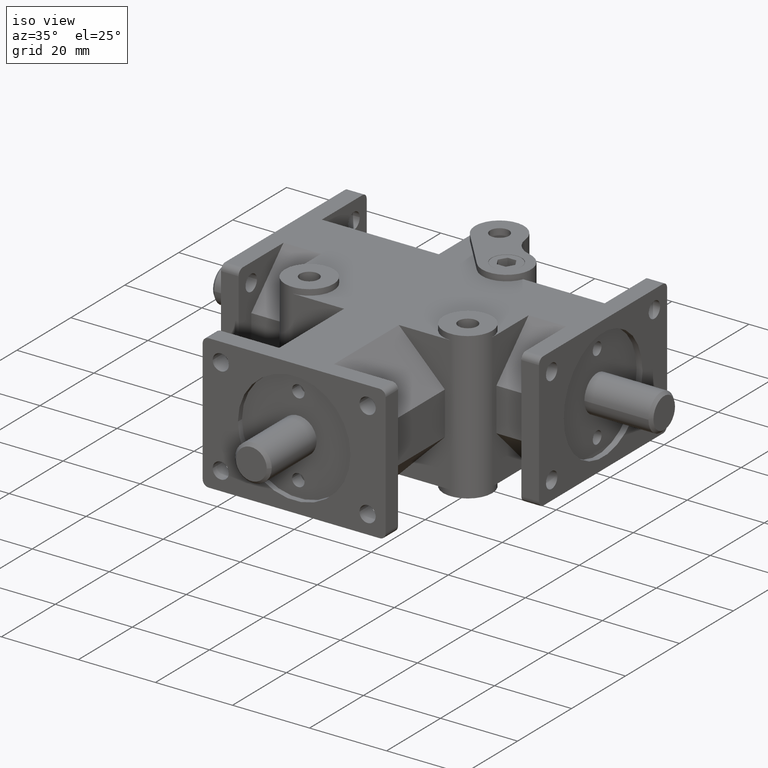
[diagram: clean part render]
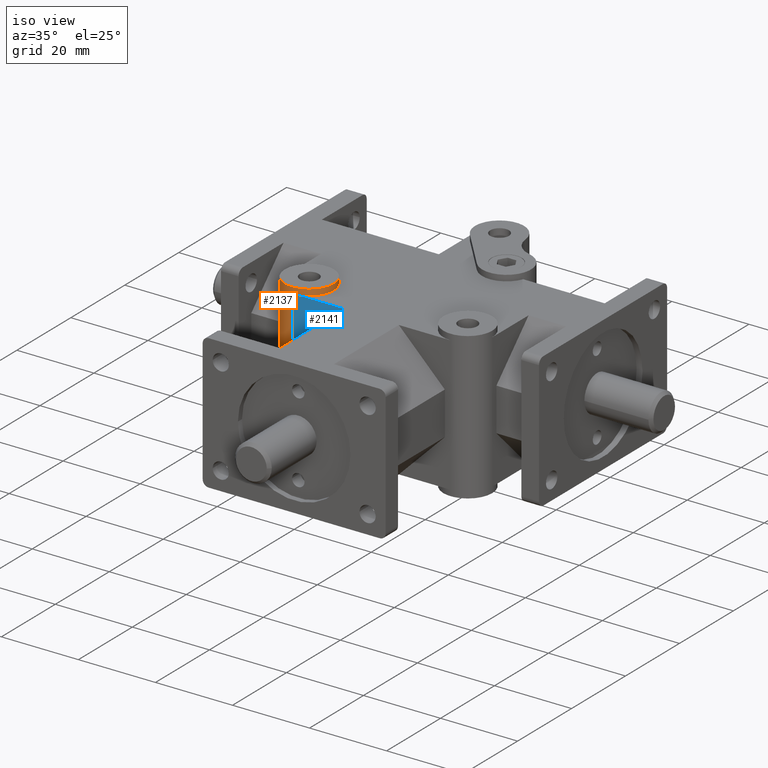
[diagram: same view with the hole feature highlighted: cylindrical wall and planar end face, labeled with their STEP entity ids]
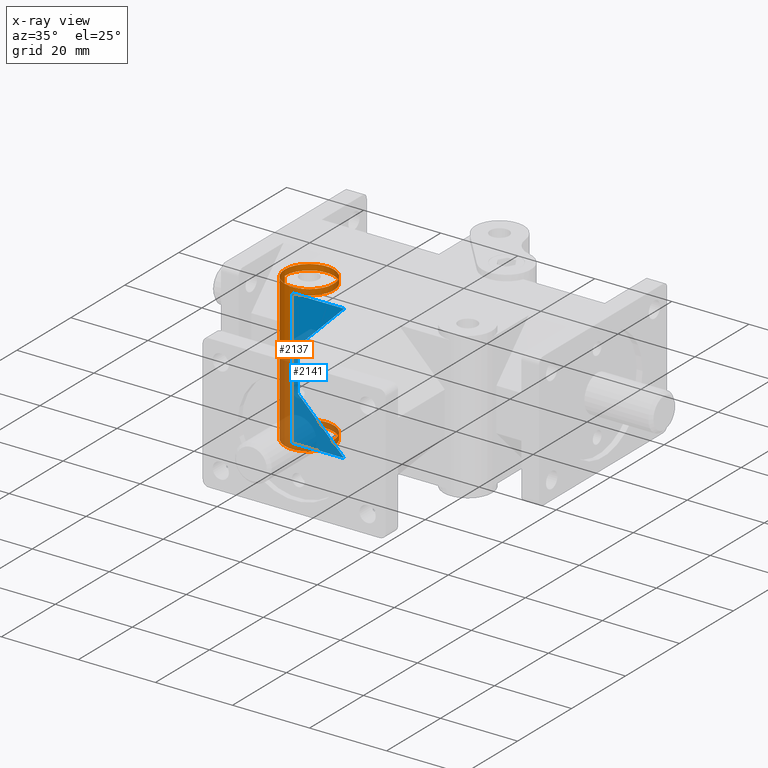
[diagram: x-ray of the same camera — body ghosted, the hole faces saturated]
A machine part, iso view. The highlighted faces form one hole feature of diameter 12.7 mm: the cylindrical wall (entity #2137, orange) and its adjacent planar end face (entity #2141, blue) — they share a circular edge in the B-rep.
The next image is the same camera in x-ray (body ghosted, the hole faces saturated) — the bore reads through the body.
Wall:
#199=FACE_OUTER_BOUND('',#347,.T.);
#347=EDGE_LOOP('',(#1769,#1770,#1771,#1772,#1773,#1774,#1775,#1776,#1777,
#1778));
#477=CIRCLE('',#2301,0.25);
#480=CIRCLE('',#2306,0.25);
#499=CIRCLE('',#2354,0.25);
#500=CIRCLE('',#2355,0.25);
#672=LINE('',#3555,#867);
#673=LINE('',#3559,#868);
#674=LINE('',#3561,#869);
#675=LINE('',#3563,#870);
#867=VECTOR('',#2880,1.);
#868=VECTOR('',#2885,0.25);
#869=VECTOR('',#2886,0.25);
#870=VECTOR('',#2889,1.);
#1019=VERTEX_POINT('',#3357);
#1020=VERTEX_POINT('',#3359);
#1030=VERTEX_POINT('',#3384);
#1031=VERTEX_POINT('',#3386);
#1084=VERTEX_POINT('',#3557);
#1085=VERTEX_POINT('',#3560);
#1244=EDGE_CURVE('',#1019,#1020,#477,.T.);
#1258=EDGE_CURVE('',#1030,#1031,#480,.T.);
#1346=EDGE_CURVE('',#1031,#1019,#672,.T.);
#1347=EDGE_CURVE('',#1084,#1084,#499,.T.);
#1348=EDGE_CURVE('',#1084,#1019,#673,.T.);
#1349=EDGE_CURVE('',#1031,#1085,#674,.T.);
#1350=EDGE_CURVE('',#1085,#1085,#500,.T.);
#1351=EDGE_CURVE('',#1030,#1020,#675,.T.);
#1769=ORIENTED_EDGE('',*,*,#1347,.T.);
#1770=ORIENTED_EDGE('',*,*,#1348,.T.);
#1771=ORIENTED_EDGE('',*,*,#1346,.F.);
#1772=ORIENTED_EDGE('',*,*,#1349,.T.);
#1773=ORIENTED_EDGE('',*,*,#1350,.T.);
#1774=ORIENTED_EDGE('',*,*,#1349,.F.);
#1775=ORIENTED_EDGE('',*,*,#1258,.F.);
#1776=ORIENTED_EDGE('',*,*,#1351,.T.);
#1777=ORIENTED_EDGE('',*,*,#1244,.F.);
#1778=ORIENTED_EDGE('',*,*,#1348,.F.);
#2052=CYLINDRICAL_SURFACE('',#2353,0.25);
#2137=ADVANCED_FACE('',(#199),#2052,.T.);
#2301=AXIS2_PLACEMENT_3D('',#3360,#2696,#2697);
#2306=AXIS2_PLACEMENT_3D('',#3387,#2717,#2718);
#2353=AXIS2_PLACEMENT_3D('',#3556,#2881,#2882);
#2354=AXIS2_PLACEMENT_3D('',#3558,#2883,#2884);
#2355=AXIS2_PLACEMENT_3D('',#3562,#2887,#2888);
#2696=DIRECTION('center_axis',(0.,0.,-1.));
#2697=DIRECTION('ref_axis',(1.,0.,0.));
#2717=DIRECTION('center_axis',(0.,0.,1.));
#2718=DIRECTION('ref_axis',(1.,0.,0.));
#2880=DIRECTION('',(0.,0.,1.));
#2881=DIRECTION('center_axis',(0.,0.,1.));
#2882=DIRECTION('ref_axis',(1.,0.,0.));
#2883=DIRECTION('center_axis',(0.,0.,-1.));
#2884=DIRECTION('ref_axis',(1.,0.,0.));
#2885=DIRECTION('',(0.,0.,-1.));
#2886=DIRECTION('',(0.,0.,-1.));
#2887=DIRECTION('center_axis',(0.,0.,1.));
#2888=DIRECTION('ref_axis',(1.,0.,0.));
#2889=DIRECTION('',(0.,0.,1.));
#3357=CARTESIAN_POINT('',(-1.06,1.3775,0.69));
#3359=CARTESIAN_POINT('',(-0.81,1.1275,0.69));
#3360=CARTESIAN_POINT('Origin',(-0.81,1.3775,0.69));
#3384=CARTESIAN_POINT('',(-0.81,1.1275,-0.69));
#3386=CARTESIAN_POINT('',(-1.06,1.3775,-0.69));
#3387=CARTESIAN_POINT('Origin',(-0.81,1.3775,-0.69));
#3555=CARTESIAN_POINT('',(-1.06,1.3775,0.));
#3556=CARTESIAN_POINT('Origin',(-0.81,1.3775,0.));
#3557=CARTESIAN_POINT('',(-1.06,1.3775,0.75));
#3558=CARTESIAN_POINT('Origin',(-0.81,1.3775,0.75));
#3559=CARTESIAN_POINT('',(-1.06,1.3775,0.));
#3560=CARTESIAN_POINT('',(-1.06,1.3775,-0.75));
#3561=CARTESIAN_POINT('',(-1.06,1.3775,0.));
#3562=CARTESIAN_POINT('Origin',(-0.81,1.3775,-0.75));
#3563=CARTESIAN_POINT('',(-0.81,1.1275,0.));
End face:
#104=PLANE('',#2361);
#203=FACE_OUTER_BOUND('',#353,.T.);
#353=EDGE_LOOP('',(#1787,#1788,#1789,#1790,#1791,#1792));
#592=LINE('',#3362,#787);
#602=LINE('',#3385,#797);
#639=LINE('',#3475,#834);
#643=LINE('',#3482,#838);
#644=LINE('',#3484,#839);
#675=LINE('',#3563,#870);
#787=VECTOR('',#2698,1.);
#797=VECTOR('',#2716,1.);
#834=VECTOR('',#2795,1.);
#838=VECTOR('',#2801,1.);
#839=VECTOR('',#2804,1.);
#870=VECTOR('',#2889,1.);
#1020=VERTEX_POINT('',#3359);
#1021=VERTEX_POINT('',#3361);
#1029=VERTEX_POINT('',#3382);
#1030=VERTEX_POINT('',#3384);
#1062=VERTEX_POINT('',#3474);
#1064=VERTEX_POINT('',#3479);
#1245=EDGE_CURVE('',#1021,#1020,#592,.T.);
#1257=EDGE_CURVE('',#1030,#1029,#602,.T.);
#1304=EDGE_CURVE('',#1021,#1062,#639,.F.);
#1308=EDGE_CURVE('',#1064,#1062,#643,.T.);
#1309=EDGE_CURVE('',#1064,#1029,#644,.F.);
#1351=EDGE_CURVE('',#1030,#1020,#675,.T.);
#1787=ORIENTED_EDGE('',*,*,#1245,.T.);
#1788=ORIENTED_EDGE('',*,*,#1351,.F.);
#1789=ORIENTED_EDGE('',*,*,#1257,.T.);
#1790=ORIENTED_EDGE('',*,*,#1309,.F.);
#1791=ORIENTED_EDGE('',*,*,#1308,.T.);
#1792=ORIENTED_EDGE('',*,*,#1304,.F.);
#2141=ADVANCED_FACE('',(#203),#104,.T.);
#2361=AXIS2_PLACEMENT_3D('',#3572,#2901,#2902);
#2698=DIRECTION('',(-1.,0.,0.));
#2716=DIRECTION('',(1.,0.,0.));
#2795=DIRECTION('',(0.707106781186548,0.,0.707106781186548));
#2801=DIRECTION('',(0.,0.,1.));
#2804=DIRECTION('',(-0.707106781186548,0.,0.707106781186548));
#2889=DIRECTION('',(0.,0.,1.));
#2901=DIRECTION('center_axis',(0.,-1.,0.));
#2902=DIRECTION('ref_axis',(0.,0.,1.));
#3359=CARTESIAN_POINT('',(-0.81,1.1275,0.69));
#3361=CARTESIAN_POINT('',(-0.28,1.1275,0.69));
#3362=CARTESIAN_POINT('',(-0.75,1.1275,0.69));
#3382=CARTESIAN_POINT('',(-0.28,1.1275,-0.69));
#3384=CARTESIAN_POINT('',(-0.81,1.1275,-0.69));
#3385=CARTESIAN_POINT('',(-0.375,1.1275,-0.69));
#3474=CARTESIAN_POINT('',(-0.75,1.1275,0.22));
#3475=CARTESIAN_POINT('',(-0.6875,1.1275,0.2825));
#3479=CARTESIAN_POINT('',(-0.75,1.1275,-0.22));
#3482=CARTESIAN_POINT('',(-0.75,1.1275,0.));
#3484=CARTESIAN_POINT('',(-0.6875,1.1275,-0.2825));
#3563=CARTESIAN_POINT('',(-0.81,1.1275,0.));
#3572=CARTESIAN_POINT('Origin',(-0.75,1.1275,0.));